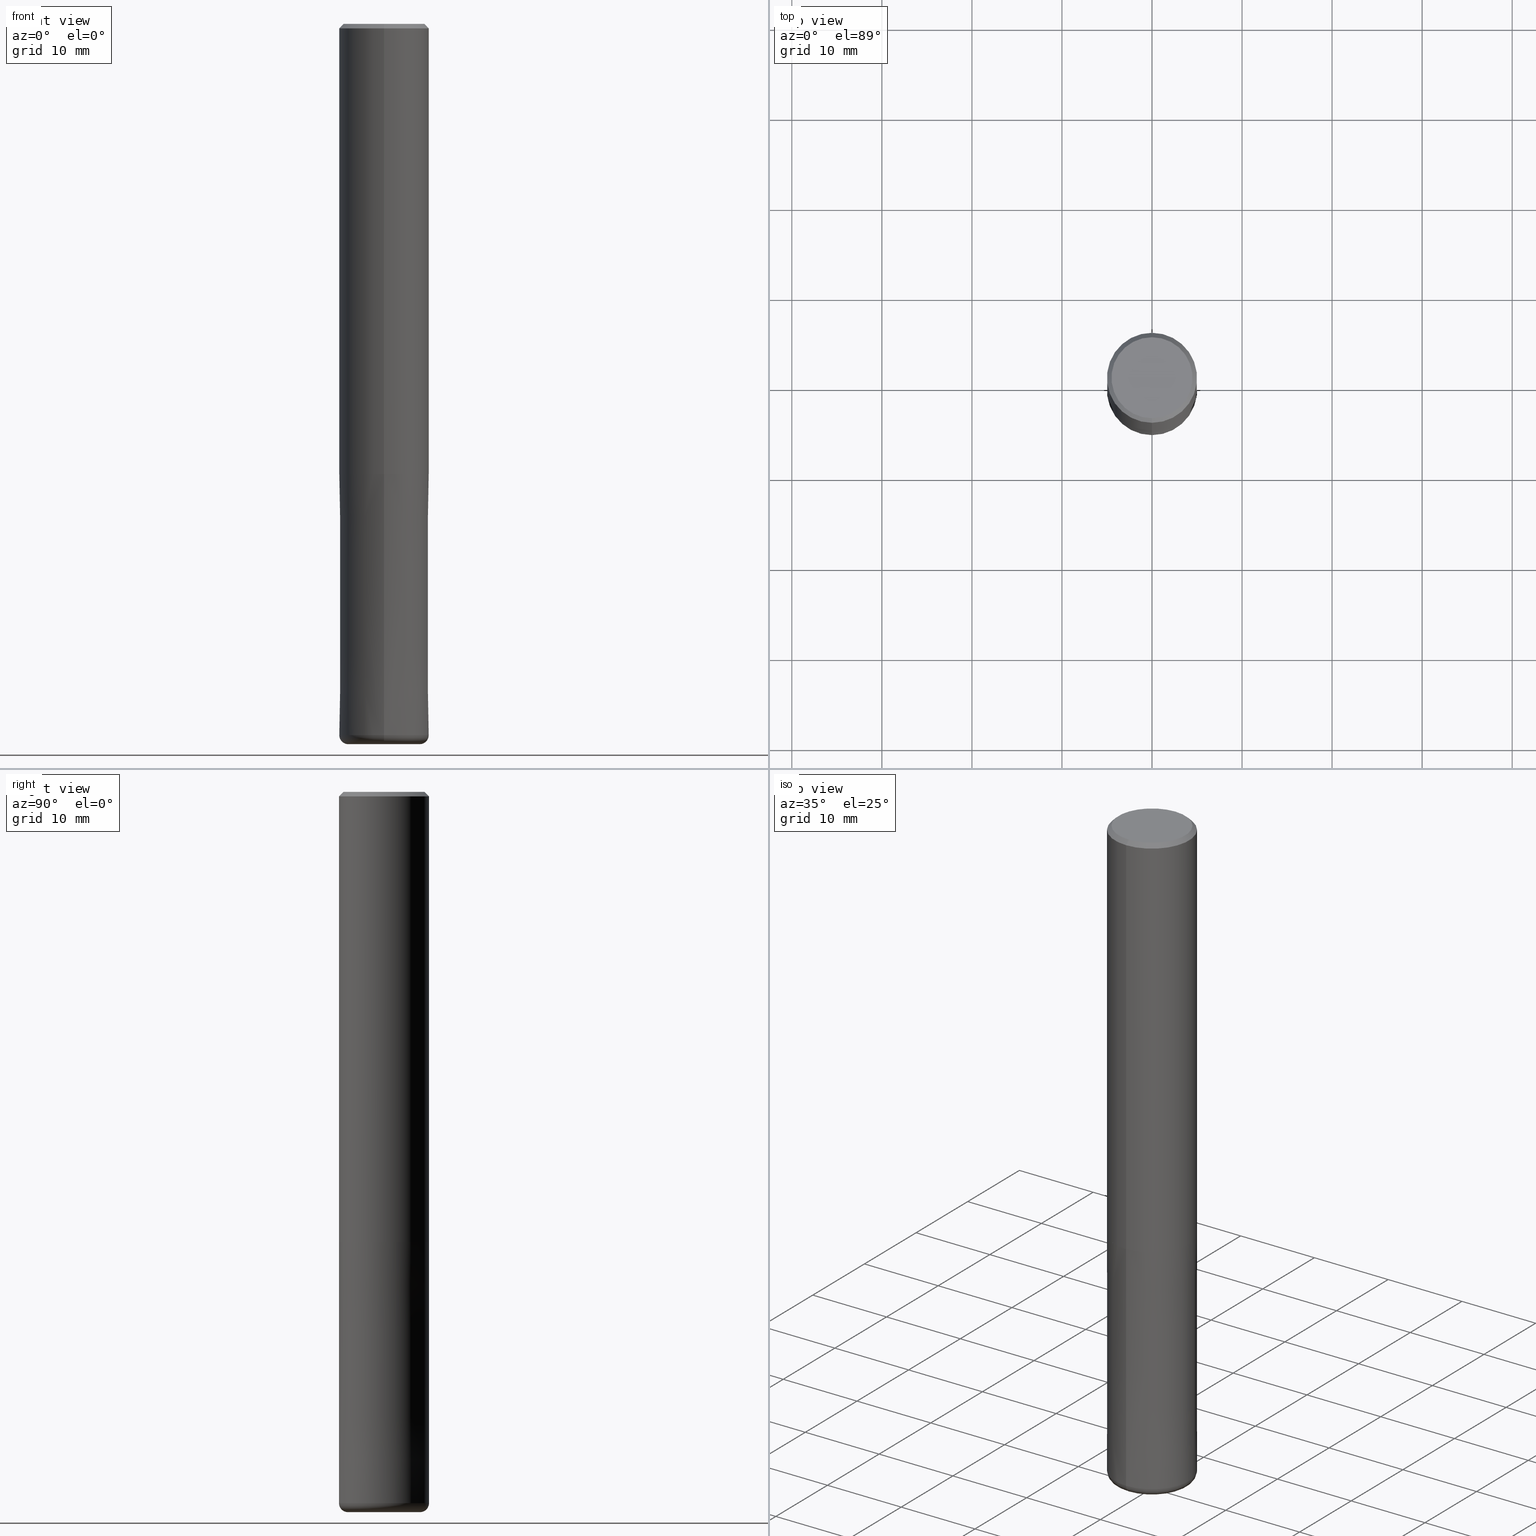
[diagram: canonical four-view strip — front | top / right | iso, engineering-drawing reading convention]
A machine part, canonical four-view strip (front | top / right | iso — engineering-drawing reading convention). The complete STEP part file that produces these views, byte-faithful:
ISO-10303-21;
HEADER;
FILE_DESCRIPTION(('no description'),'unknown implementation level');
FILE_NAME('CXRS5100-10-3000-Huellk.stp','  ',('CIMSOURCE GmbH'),('CADClick - KiM GmbH - www.kimweb.de'),'unknown preprocess','ACIS','unknown authorization');
FILE_SCHEMA(('automotive_design'));
ENDSEC;
DATA;
#1=MECHANICAL_DESIGN_GEOMETRIC_PRESENTATION_REPRESENTATION(' ',(#14,#15,#16,#17,#18,#19,#20,#21,#22,#23,#24,#25,#26,#27,#28,#29,#30,#31,#32,#33,#34,#35,#36,#37,#38,#39,#40,#41,#42,#43,#44,#45,#46,#47,#48,#49,#50,#51,#52,#53,#54,#55,#56,#57,#58,#59,#60,#61,#62,#63,#64,#65,#66,#67,#68,#69,#70,#71,#72,#73,#74,#75,#76,#77,#78,#79,#80,#81,#82,#83,#84),#10);
#2=PRODUCT_DEFINITION_CONTEXT('',#85,'design');
#3=APPLICATION_PROTOCOL_DEFINITION('INTERNATIONAL STANDARD','automotive_design',1994,#85);
#4=PRODUCT_CATEGORY_RELATIONSHIP('NONE','NONE',#86,#87);
#5=SHAPE_DEFINITION_REPRESENTATION(#88,#89);
#6=PRODUCT_DEFINITION_CONTEXT('',#90,'design');
#7=APPLICATION_PROTOCOL_DEFINITION('INTERNATIONAL STANDARD','automotive_design',1994,#90);
#8=PRODUCT_CATEGORY_RELATIONSHIP('NONE','NONE',#91,#92);
#9=SHAPE_DEFINITION_REPRESENTATION(#93,#94);
#10= (GEOMETRIC_REPRESENTATION_CONTEXT(3)GLOBAL_UNCERTAINTY_ASSIGNED_CONTEXT((#97))GLOBAL_UNIT_ASSIGNED_CONTEXT((#99,#100,#101))REPRESENTATION_CONTEXT('NONE','WORKSPACE'));
#14=STYLED_ITEM('',(#103),#104);
#15=STYLED_ITEM('',(#105),#106);
#16=STYLED_ITEM('',(#107),#108);
#17=STYLED_ITEM('',(#109),#110);
#18=STYLED_ITEM('',(#111),#112);
#19=STYLED_ITEM('',(#113),#114);
#20=STYLED_ITEM('',(#115),#116);
#21=STYLED_ITEM('',(#117),#118);
#22=STYLED_ITEM('',(#119),#120);
#23=STYLED_ITEM('',(#121),#122);
#24=STYLED_ITEM('',(#123),#124);
#25=STYLED_ITEM('',(#125),#126);
#26=STYLED_ITEM('',(#127),#128);
#27=STYLED_ITEM('',(#129),#130);
#28=STYLED_ITEM('',(#131),#132);
#29=STYLED_ITEM('',(#133),#134);
#30=STYLED_ITEM('',(#135),#136);
#31=STYLED_ITEM('',(#137),#138);
#32=STYLED_ITEM('',(#139),#140);
#33=STYLED_ITEM('',(#141),#142);
#34=STYLED_ITEM('',(#143),#144);
#35=STYLED_ITEM('',(#145),#146);
#36=STYLED_ITEM('',(#147),#148);
#37=STYLED_ITEM('',(#149),#150);
#38=STYLED_ITEM('',(#151),#152);
#39=STYLED_ITEM('',(#153),#154);
#40=STYLED_ITEM('',(#155),#156);
#41=STYLED_ITEM('',(#157),#158);
#42=STYLED_ITEM('',(#159),#160);
#43=STYLED_ITEM('',(#161),#162);
#44=STYLED_ITEM('',(#163),#164);
#45=STYLED_ITEM('',(#165),#166);
#46=STYLED_ITEM('',(#167),#168);
#47=STYLED_ITEM('',(#169),#170);
#48=STYLED_ITEM('',(#171),#172);
#49=STYLED_ITEM('',(#173),#174);
#50=STYLED_ITEM('',(#175),#176);
#51=STYLED_ITEM('',(#177),#178);
#52=STYLED_ITEM('',(#179),#180);
#53=STYLED_ITEM('',(#181),#182);
#54=STYLED_ITEM('',(#183),#184);
#55=STYLED_ITEM('',(#185),#186);
#56=STYLED_ITEM('',(#187),#188);
#57=STYLED_ITEM('',(#189),#190);
#58=STYLED_ITEM('',(#191),#192);
#59=STYLED_ITEM('',(#193),#194);
#60=STYLED_ITEM('',(#195),#196);
#61=STYLED_ITEM('',(#197),#198);
#62=STYLED_ITEM('',(#199),#200);
#63=STYLED_ITEM('',(#201),#202);
#64=STYLED_ITEM('',(#203),#204);
#65=STYLED_ITEM('',(#205),#206);
#66=STYLED_ITEM('',(#207),#208);
#67=STYLED_ITEM('',(#209),#210);
#68=STYLED_ITEM('',(#211),#212);
#69=STYLED_ITEM('',(#213),#214);
#70=STYLED_ITEM('',(#215),#216);
#71=STYLED_ITEM('',(#217),#218);
#72=STYLED_ITEM('',(#219),#220);
#73=STYLED_ITEM('',(#221),#222);
#74=STYLED_ITEM('',(#223),#224);
#75=STYLED_ITEM('',(#225),#226);
#76=STYLED_ITEM('',(#227),#228);
#77=STYLED_ITEM('',(#229),#230);
#78=STYLED_ITEM('',(#231),#232);
#79=STYLED_ITEM('',(#233),#234);
#80=STYLED_ITEM('',(#235),#236);
#81=STYLED_ITEM('',(#237),#238);
#82=STYLED_ITEM('',(#239),#240);
#83=STYLED_ITEM('',(#241),#242);
#84=STYLED_ITEM('',(#243),#244);
#85=APPLICATION_CONTEXT(' ');
#86=PRODUCT_CATEGORY('part','NONE');
#87=PRODUCT_RELATED_PRODUCT_CATEGORY('detail',' ',(#245));
#88=PRODUCT_DEFINITION_SHAPE('NONE','NONE',#246);
#89=ADVANCED_BREP_SHAPE_REPRESENTATION('1',(#104,#247),#10);
#90=APPLICATION_CONTEXT(' ');
#91=PRODUCT_CATEGORY('part','NONE');
#92=PRODUCT_RELATED_PRODUCT_CATEGORY('detail',' ',(#248));
#93=PRODUCT_DEFINITION_SHAPE('NONE','NONE',#249);
#94=ADVANCED_BREP_SHAPE_REPRESENTATION('2',(#222,#250),#10);
#97=UNCERTAINTY_MEASURE_WITH_UNIT(LENGTH_MEASURE(1.0E-006),#99,'','');
#99= (CONVERSION_BASED_UNIT('MILLIMETRE',#253)LENGTH_UNIT()NAMED_UNIT(#256));
#100= (NAMED_UNIT(#258)PLANE_ANGLE_UNIT()SI_UNIT($,.RADIAN.));
#101= (NAMED_UNIT(#258)SOLID_ANGLE_UNIT()SI_UNIT($,.STERADIAN.));
#103=PRESENTATION_STYLE_ASSIGNMENT((#264));
#104=MANIFOLD_SOLID_BREP('1',#265);
#105=PRESENTATION_STYLE_ASSIGNMENT((#266));
#106=VERTEX_POINT('',#267);
#107=PRESENTATION_STYLE_ASSIGNMENT((#268));
#108=EDGE_CURVE('',#120,#218,#269,.T.);
#109=PRESENTATION_STYLE_ASSIGNMENT((#270));
#110=EDGE_CURVE('',#232,#154,#271,.T.);
#111=PRESENTATION_STYLE_ASSIGNMENT((#272));
#112=EDGE_CURVE('',#192,#130,#273,.T.);
#113=PRESENTATION_STYLE_ASSIGNMENT((#274));
#114=EDGE_CURVE('',#224,#120,#275,.T.);
#115=PRESENTATION_STYLE_ASSIGNMENT((#276));
#116=ADVANCED_FACE('',(#277,#278),#279,.T.);
#117=PRESENTATION_STYLE_ASSIGNMENT((#280));
#118=EDGE_CURVE('',#132,#232,#281,.T.);
#119=PRESENTATION_STYLE_ASSIGNMENT((#282));
#120=VERTEX_POINT('',#283);
#121=PRESENTATION_STYLE_ASSIGNMENT((#284));
#122=ADVANCED_FACE('',(#285),#286,.T.);
#123=PRESENTATION_STYLE_ASSIGNMENT((#287));
#124=EDGE_CURVE('',#130,#192,#288,.T.);
#125=PRESENTATION_STYLE_ASSIGNMENT((#289));
#126=EDGE_CURVE('',#192,#140,#290,.T.);
#127=PRESENTATION_STYLE_ASSIGNMENT((#291));
#128=EDGE_CURVE('',#202,#224,#292,.T.);
#129=PRESENTATION_STYLE_ASSIGNMENT((#293));
#130=VERTEX_POINT('',#294);
#131=PRESENTATION_STYLE_ASSIGNMENT((#295));
#132=VERTEX_POINT('',#296);
#133=PRESENTATION_STYLE_ASSIGNMENT((#297));
#134=EDGE_CURVE('',#132,#150,#298,.T.);
#135=PRESENTATION_STYLE_ASSIGNMENT((#299));
#136=EDGE_CURVE('',#196,#182,#300,.T.);
#137=PRESENTATION_STYLE_ASSIGNMENT((#301));
#138=EDGE_CURVE('',#224,#202,#302,.T.);
#139=PRESENTATION_STYLE_ASSIGNMENT((#303));
#140=VERTEX_POINT('',#304);
#141=PRESENTATION_STYLE_ASSIGNMENT((#305));
#142=EDGE_CURVE('',#244,#140,#306,.T.);
#143=PRESENTATION_STYLE_ASSIGNMENT((#307));
#144=ADVANCED_FACE('',(#308,#309),#310,.T.);
#145=PRESENTATION_STYLE_ASSIGNMENT((#311));
#146=ADVANCED_FACE('',(#312),#313,.T.);
#147=PRESENTATION_STYLE_ASSIGNMENT((#314));
#148=ADVANCED_FACE('',(#315),#316,.T.);
#149=PRESENTATION_STYLE_ASSIGNMENT((#317));
#150=VERTEX_POINT('',#318);
#151=PRESENTATION_STYLE_ASSIGNMENT((#319));
#152=VERTEX_POINT('',#320);
#153=PRESENTATION_STYLE_ASSIGNMENT((#321));
#154=VERTEX_POINT('',#322);
#155=PRESENTATION_STYLE_ASSIGNMENT((#323));
#156=ADVANCED_FACE('',(#324),#325,.T.);
#157=PRESENTATION_STYLE_ASSIGNMENT((#326));
#158=VERTEX_POINT('',#327);
#159=PRESENTATION_STYLE_ASSIGNMENT((#328));
#160=EDGE_CURVE('',#168,#152,#329,.T.);
#161=PRESENTATION_STYLE_ASSIGNMENT((#330));
#162=ADVANCED_FACE('',(#331),#332,.F.);
#163=PRESENTATION_STYLE_ASSIGNMENT((#333));
#164=EDGE_CURVE('',#132,#106,#334,.T.);
#165=PRESENTATION_STYLE_ASSIGNMENT((#335));
#166=EDGE_CURVE('',#106,#184,#336,.T.);
#167=PRESENTATION_STYLE_ASSIGNMENT((#337));
#168=VERTEX_POINT('',#338);
#169=PRESENTATION_STYLE_ASSIGNMENT((#339));
#170=EDGE_CURVE('',#140,#244,#340,.T.);
#171=PRESENTATION_STYLE_ASSIGNMENT((#341));
#172=EDGE_CURVE('',#152,#168,#342,.T.);
#173=PRESENTATION_STYLE_ASSIGNMENT((#343));
#174=VERTEX_POINT('',#344);
#175=PRESENTATION_STYLE_ASSIGNMENT((#345));
#176=ADVANCED_FACE('',(#346),#347,.T.);
#177=PRESENTATION_STYLE_ASSIGNMENT((#348));
#178=EDGE_CURVE('',#196,#158,#349,.T.);
#179=PRESENTATION_STYLE_ASSIGNMENT((#350));
#180=ADVANCED_FACE('',(#351),#352,.T.);
#181=PRESENTATION_STYLE_ASSIGNMENT((#353));
#182=VERTEX_POINT('',#354);
#183=PRESENTATION_STYLE_ASSIGNMENT((#355));
#184=VERTEX_POINT('',#356);
#185=PRESENTATION_STYLE_ASSIGNMENT((#357));
#186=ADVANCED_FACE('',(#358),#359,.T.);
#187=PRESENTATION_STYLE_ASSIGNMENT((#360));
#188=EDGE_CURVE('',#184,#150,#361,.T.);
#189=PRESENTATION_STYLE_ASSIGNMENT((#362));
#190=ADVANCED_FACE('',(#363),#364,.T.);
#191=PRESENTATION_STYLE_ASSIGNMENT((#365));
#192=VERTEX_POINT('',#366);
#193=PRESENTATION_STYLE_ASSIGNMENT((#367));
#194=ADVANCED_FACE('',(#368),#369,.T.);
#195=PRESENTATION_STYLE_ASSIGNMENT((#370));
#196=VERTEX_POINT('',#371);
#197=PRESENTATION_STYLE_ASSIGNMENT((#372));
#198=EDGE_CURVE('',#154,#150,#373,.T.);
#199=PRESENTATION_STYLE_ASSIGNMENT((#374));
#200=ADVANCED_FACE('',(#375),#376,.T.);
#201=PRESENTATION_STYLE_ASSIGNMENT((#377));
#202=VERTEX_POINT('',#378);
#203=PRESENTATION_STYLE_ASSIGNMENT((#379));
#204=EDGE_CURVE('',#158,#174,#380,.T.);
#205=PRESENTATION_STYLE_ASSIGNMENT((#381));
#206=ADVANCED_FACE('',(#382,#383),#384,.T.);
#207=PRESENTATION_STYLE_ASSIGNMENT((#385));
#208=EDGE_CURVE('',#174,#158,#386,.T.);
#209=PRESENTATION_STYLE_ASSIGNMENT((#387));
#210=EDGE_CURVE('',#174,#182,#388,.T.);
#211=PRESENTATION_STYLE_ASSIGNMENT((#389));
#212=EDGE_CURVE('',#154,#232,#390,.T.);
#213=PRESENTATION_STYLE_ASSIGNMENT((#391));
#214=EDGE_CURVE('',#150,#132,#392,.T.);
#215=PRESENTATION_STYLE_ASSIGNMENT((#393));
#216=ADVANCED_FACE('',(#394),#395,.T.);
#217=PRESENTATION_STYLE_ASSIGNMENT((#396));
#218=VERTEX_POINT('',#397);
#219=PRESENTATION_STYLE_ASSIGNMENT((#398));
#220=EDGE_CURVE('',#202,#168,#399,.T.);
#221=PRESENTATION_STYLE_ASSIGNMENT((#400));
#222=MANIFOLD_SOLID_BREP('2',#401);
#223=PRESENTATION_STYLE_ASSIGNMENT((#402));
#224=VERTEX_POINT('',#403);
#225=PRESENTATION_STYLE_ASSIGNMENT((#404));
#226=EDGE_CURVE('',#218,#202,#405,.T.);
#227=PRESENTATION_STYLE_ASSIGNMENT((#406));
#228=EDGE_CURVE('',#244,#130,#407,.T.);
#229=PRESENTATION_STYLE_ASSIGNMENT((#408));
#230=EDGE_CURVE('',#182,#196,#409,.T.);
#231=PRESENTATION_STYLE_ASSIGNMENT((#410));
#232=VERTEX_POINT('',#411);
#233=PRESENTATION_STYLE_ASSIGNMENT((#412));
#234=EDGE_CURVE('',#184,#106,#413,.T.);
#235=PRESENTATION_STYLE_ASSIGNMENT((#414));
#236=ADVANCED_FACE('',(#415),#416,.F.);
#237=PRESENTATION_STYLE_ASSIGNMENT((#417));
#238=EDGE_CURVE('',#218,#120,#418,.T.);
#239=PRESENTATION_STYLE_ASSIGNMENT((#419));
#240=EDGE_CURVE('',#152,#224,#420,.T.);
#241=PRESENTATION_STYLE_ASSIGNMENT((#421));
#242=ADVANCED_FACE('',(#422),#423,.T.);
#243=PRESENTATION_STYLE_ASSIGNMENT((#424));
#244=VERTEX_POINT('',#425);
#245=PRODUCT('1','1','PART-1-DESC',(#426));
#246=PRODUCT_DEFINITION('NONE','NONE',#427,#2);
#247=AXIS2_PLACEMENT_3D('',#428,#429,#430);
#248=PRODUCT('2','2','PART-2-DESC',(#431));
#249=PRODUCT_DEFINITION('NONE','NONE',#432,#6);
#250=AXIS2_PLACEMENT_3D('',#433,#434,#435);
#253=LENGTH_MEASURE_WITH_UNIT(LENGTH_MEASURE(1.0),#436);
#256=DIMENSIONAL_EXPONENTS(1.0,0.0,0.0,0.0,0.0,0.0,0.0);
#258=DIMENSIONAL_EXPONENTS(0.0,0.0,0.0,0.0,0.0,0.0,0.0);
#264=SURFACE_STYLE_USAGE(.BOTH.,#437);
#265=CLOSED_SHELL('',(#156,#146,#186,#206,#200,#194,#176,#122,#216));
#266=POINT_STYLE(' ',#438,POSITIVE_LENGTH_MEASURE(1.0E-006),#439);
#267=CARTESIAN_POINT('',(6.1229093084765E-016,-4.9999,-50.0));
#268=CURVE_STYLE('',#440,POSITIVE_LENGTH_MEASURE(1.0E-006),#441);
#269=CIRCLE('',#442,5.0);
#270=CURVE_STYLE('',#443,POSITIVE_LENGTH_MEASURE(1.0E-006),#444);
#271=CIRCLE('',#445,4.0);
#272=CURVE_STYLE('',#446,POSITIVE_LENGTH_MEASURE(1.0E-006),#447);
#273=CIRCLE('',#448,2.25);
#274=CURVE_STYLE('',#449,POSITIVE_LENGTH_MEASURE(1.0E-006),#450);
#275=LINE('',#451,#452);
#276=SURFACE_STYLE_USAGE(.BOTH.,#453);
#277=FACE_BOUND('',#454,.T.);
#278=FACE_OUTER_BOUND('',#455,.T.);
#279=PLANE('',#456);
#280=CURVE_STYLE('',#457,POSITIVE_LENGTH_MEASURE(1.0E-006),#458);
#281=CIRCLE('',#459,0.999999999999989);
#282=POINT_STYLE(' ',#460,POSITIVE_LENGTH_MEASURE(1.0E-006),#461);
#283=CARTESIAN_POINT('',(0.0,5.0,-50.0));
#284=SURFACE_STYLE_USAGE(.BOTH.,#462);
#285=FACE_OUTER_BOUND('',#463,.T.);
#286=CYLINDRICAL_SURFACE('',#464,2.25);
#287=CURVE_STYLE('',#465,POSITIVE_LENGTH_MEASURE(1.0E-006),#466);
#288=CIRCLE('',#467,2.25);
#289=CURVE_STYLE('',#468,POSITIVE_LENGTH_MEASURE(1.0E-006),#469);
#290=LINE('',#470,#471);
#291=CURVE_STYLE('',#472,POSITIVE_LENGTH_MEASURE(1.0E-006),#473);
#292=CIRCLE('',#474,5.0);
#293=POINT_STYLE(' ',#475,POSITIVE_LENGTH_MEASURE(1.0E-006),#476);
#294=CARTESIAN_POINT('',(2.75536429610035E-016,-2.25,-50.0));
#295=POINT_STYLE(' ',#477,POSITIVE_LENGTH_MEASURE(1.0E-006),#478);
#296=CARTESIAN_POINT('',(6.12303176911188E-016,-5.0,-79.0));
#297=CURVE_STYLE('',#479,POSITIVE_LENGTH_MEASURE(1.0E-006),#480);
#298=CIRCLE('',#481,5.0);
#299=CURVE_STYLE('',#482,POSITIVE_LENGTH_MEASURE(1.0E-006),#483);
#300=CIRCLE('',#484,2.25);
#301=CURVE_STYLE('',#485,POSITIVE_LENGTH_MEASURE(1.0E-006),#486);
#302=CIRCLE('',#487,5.0);
#303=POINT_STYLE(' ',#488,POSITIVE_LENGTH_MEASURE(1.0E-006),#489);
#304=CARTESIAN_POINT('',(0.0,2.25,-79.8));
#305=CURVE_STYLE('',#490,POSITIVE_LENGTH_MEASURE(1.0E-006),#491);
#306=CIRCLE('',#492,2.25);
#307=SURFACE_STYLE_USAGE(.BOTH.,#493);
#308=FACE_OUTER_BOUND('',#494,.T.);
#309=FACE_BOUND('',#495,.T.);
#310=PLANE('',#496);
#311=SURFACE_STYLE_USAGE(.BOTH.,#497);
#312=FACE_OUTER_BOUND('',#498,.T.);
#313=CYLINDRICAL_SURFACE('',#499,5.0);
#314=SURFACE_STYLE_USAGE(.BOTH.,#500);
#315=FACE_OUTER_BOUND('',#501,.T.);
#316=TOROIDAL_SURFACE('',#502,4.00000000000001,0.999999999999989);
#317=POINT_STYLE(' ',#503,POSITIVE_LENGTH_MEASURE(1.0E-006),#504);
#318=CARTESIAN_POINT('',(0.0,5.0,-79.0));
#319=POINT_STYLE(' ',#505,POSITIVE_LENGTH_MEASURE(1.0E-006),#506);
#320=CARTESIAN_POINT('',(0.0,4.5,0.0));
#321=POINT_STYLE(' ',#507,POSITIVE_LENGTH_MEASURE(1.0E-006),#508);
#322=CARTESIAN_POINT('',(0.0,4.0,-80.0));
#323=SURFACE_STYLE_USAGE(.BOTH.,#509);
#324=FACE_OUTER_BOUND('',#510,.T.);
#325=CYLINDRICAL_SURFACE('',#511,2.25);
#326=POINT_STYLE(' ',#512,POSITIVE_LENGTH_MEASURE(1.0E-006),#513);
#327=CARTESIAN_POINT('',(2.75536429610035E-016,-2.25,-50.0));
#328=CURVE_STYLE('',#514,POSITIVE_LENGTH_MEASURE(1.0E-006),#515);
#329=CIRCLE('',#516,4.5);
#330=SURFACE_STYLE_USAGE(.BOTH.,#517);
#331=FACE_OUTER_BOUND('',#518,.T.);
#332=CYLINDRICAL_SURFACE('',#519,2.25);
#333=CURVE_STYLE('',#520,POSITIVE_LENGTH_MEASURE(1.0E-006),#521);
#334=LINE('',#522,#523);
#335=CURVE_STYLE('',#524,POSITIVE_LENGTH_MEASURE(1.0E-006),#525);
#336=CIRCLE('',#526,4.9999);
#337=POINT_STYLE(' ',#527,POSITIVE_LENGTH_MEASURE(1.0E-006),#528);
#338=CARTESIAN_POINT('',(5.5107285922007E-016,-4.5,0.0));
#339=CURVE_STYLE('',#529,POSITIVE_LENGTH_MEASURE(1.0E-006),#530);
#340=CIRCLE('',#531,2.25);
#341=CURVE_STYLE('',#532,POSITIVE_LENGTH_MEASURE(1.0E-006),#533);
#342=CIRCLE('',#534,4.5);
#343=POINT_STYLE(' ',#535,POSITIVE_LENGTH_MEASURE(1.0E-006),#536);
#344=CARTESIAN_POINT('',(0.0,2.25,-50.0));
#345=SURFACE_STYLE_USAGE(.BOTH.,#537);
#346=FACE_OUTER_BOUND('',#538,.T.);
#347=CYLINDRICAL_SURFACE('',#539,5.0);
#348=CURVE_STYLE('',#540,POSITIVE_LENGTH_MEASURE(1.0E-006),#541);
#349=LINE('',#542,#543);
#350=SURFACE_STYLE_USAGE(.BOTH.,#544);
#351=FACE_OUTER_BOUND('',#545,.T.);
#352=TOROIDAL_SURFACE('',#546,4.00000000000001,0.999999999999989);
#353=POINT_STYLE(' ',#547,POSITIVE_LENGTH_MEASURE(1.0E-006),#548);
#354=CARTESIAN_POINT('',(0.0,2.25,-80.0));
#355=POINT_STYLE(' ',#549,POSITIVE_LENGTH_MEASURE(1.0E-006),#550);
#356=CARTESIAN_POINT('',(0.0,4.9999,-50.0));
#357=SURFACE_STYLE_USAGE(.BOTH.,#551);
#358=FACE_OUTER_BOUND('',#552,.T.);
#359=CONICAL_SURFACE('',#553,4.75,0.785398163397448);
#360=CURVE_STYLE('',#554,POSITIVE_LENGTH_MEASURE(1.0E-006),#555);
#361=LINE('',#556,#557);
#362=SURFACE_STYLE_USAGE(.BOTH.,#558);
#363=FACE_OUTER_BOUND('',#559,.T.);
#364=CONICAL_SURFACE('',#560,4.99995,3.44827586204726E-006);
#365=POINT_STYLE(' ',#561,POSITIVE_LENGTH_MEASURE(1.0E-006),#562);
#366=CARTESIAN_POINT('',(0.0,2.25,-50.0));
#367=SURFACE_STYLE_USAGE(.BOTH.,#563);
#368=FACE_OUTER_BOUND('',#564,.T.);
#369=CONICAL_SURFACE('',#565,4.75,0.785398163397448);
#370=POINT_STYLE(' ',#566,POSITIVE_LENGTH_MEASURE(1.0E-006),#567);
#371=CARTESIAN_POINT('',(2.75536429610035E-016,-2.25,-80.0));
#372=CURVE_STYLE('',#568,POSITIVE_LENGTH_MEASURE(1.0E-006),#569);
#373=CIRCLE('',#570,0.999999999999989);
#374=SURFACE_STYLE_USAGE(.BOTH.,#571);
#375=FACE_OUTER_BOUND('',#572,.T.);
#376=PLANE('',#573);
#377=POINT_STYLE(' ',#574,POSITIVE_LENGTH_MEASURE(1.0E-006),#575);
#378=CARTESIAN_POINT('',(6.12303176911189E-016,-5.0,-0.5));
#379=CURVE_STYLE('',#576,POSITIVE_LENGTH_MEASURE(1.0E-006),#577);
#380=CIRCLE('',#578,2.25);
#381=SURFACE_STYLE_USAGE(.BOTH.,#579);
#382=FACE_OUTER_BOUND('',#580,.T.);
#383=FACE_BOUND('',#581,.T.);
#384=PLANE('',#582);
#385=CURVE_STYLE('',#583,POSITIVE_LENGTH_MEASURE(1.0E-006),#584);
#386=CIRCLE('',#585,2.25);
#387=CURVE_STYLE('',#586,POSITIVE_LENGTH_MEASURE(1.0E-006),#587);
#388=LINE('',#588,#589);
#389=CURVE_STYLE('',#590,POSITIVE_LENGTH_MEASURE(1.0E-006),#591);
#390=CIRCLE('',#592,4.0);
#391=CURVE_STYLE('',#593,POSITIVE_LENGTH_MEASURE(1.0E-006),#594);
#392=CIRCLE('',#595,5.0);
#393=SURFACE_STYLE_USAGE(.BOTH.,#596);
#394=FACE_OUTER_BOUND('',#597,.T.);
#395=PLANE('',#598);
#396=POINT_STYLE(' ',#599,POSITIVE_LENGTH_MEASURE(1.0E-006),#600);
#397=CARTESIAN_POINT('',(6.12303176911189E-016,-5.0,-50.0));
#398=CURVE_STYLE('',#601,POSITIVE_LENGTH_MEASURE(1.0E-006),#602);
#399=LINE('',#603,#604);
#400=SURFACE_STYLE_USAGE(.BOTH.,#605);
#401=CLOSED_SHELL('',(#236,#180,#190,#144,#242,#148,#116,#162));
#402=POINT_STYLE(' ',#606,POSITIVE_LENGTH_MEASURE(1.0E-006),#607);
#403=CARTESIAN_POINT('',(0.0,5.0,-0.5));
#404=CURVE_STYLE('',#608,POSITIVE_LENGTH_MEASURE(1.0E-006),#609);
#405=LINE('',#610,#611);
#406=CURVE_STYLE('',#612,POSITIVE_LENGTH_MEASURE(1.0E-006),#613);
#407=LINE('',#614,#615);
#408=CURVE_STYLE('',#616,POSITIVE_LENGTH_MEASURE(1.0E-006),#617);
#409=CIRCLE('',#618,2.25);
#410=POINT_STYLE(' ',#619,POSITIVE_LENGTH_MEASURE(1.0E-006),#620);
#411=CARTESIAN_POINT('',(4.89842541528951E-016,-4.0,-80.0));
#412=CURVE_STYLE('',#621,POSITIVE_LENGTH_MEASURE(1.0E-006),#622);
#413=CIRCLE('',#623,4.9999);
#414=SURFACE_STYLE_USAGE(.BOTH.,#624);
#415=FACE_OUTER_BOUND('',#625,.T.);
#416=CYLINDRICAL_SURFACE('',#626,2.25);
#417=CURVE_STYLE('',#627,POSITIVE_LENGTH_MEASURE(1.0E-006),#628);
#418=CIRCLE('',#629,5.0);
#419=CURVE_STYLE('',#630,POSITIVE_LENGTH_MEASURE(1.0E-006),#631);
#420=LINE('',#632,#633);
#421=SURFACE_STYLE_USAGE(.BOTH.,#634);
#422=FACE_OUTER_BOUND('',#635,.T.);
#423=CONICAL_SURFACE('',#636,4.99995,3.44827586204726E-006);
#424=POINT_STYLE(' ',#637,POSITIVE_LENGTH_MEASURE(1.0E-006),#638);
#425=CARTESIAN_POINT('',(2.75536429610035E-016,-2.25,-79.8));
#426=PRODUCT_CONTEXT('',#85,'mechanical');
#427=PRODUCT_DEFINITION_FORMATION_WITH_SPECIFIED_SOURCE(' ','NONE',#245,.NOT_KNOWN.);
#428=CARTESIAN_POINT('',(0.0,0.0,0.0));
#429=DIRECTION('',(0.0,0.0,1.0));
#430=DIRECTION('',(1.0,0.0,0.0));
#431=PRODUCT_CONTEXT('',#90,'mechanical');
#432=PRODUCT_DEFINITION_FORMATION_WITH_SPECIFIED_SOURCE(' ','NONE',#248,.NOT_KNOWN.);
#433=CARTESIAN_POINT('',(0.0,0.0,0.0));
#434=DIRECTION('',(0.0,0.0,1.0));
#435=DIRECTION('',(1.0,0.0,0.0));
#436= (NAMED_UNIT(#256)LENGTH_UNIT()SI_UNIT(.MILLI.,.METRE.));
#437=SURFACE_SIDE_STYLE('',(#640));
#438=PRE_DEFINED_MARKER('');
#439=COLOUR_RGB('',0.800000011920929,0.800000011920929,0.800000011920929);
#440=DRAUGHTING_PRE_DEFINED_CURVE_FONT('continuous');
#441=COLOUR_RGB('',0.498039215803146,0.498039215803146,0.498039215803146);
#442=AXIS2_PLACEMENT_3D('',#641,#642,#643);
#443=DRAUGHTING_PRE_DEFINED_CURVE_FONT('continuous');
#444=COLOUR_RGB('',0.800000011920929,0.800000011920929,0.800000011920929);
#445=AXIS2_PLACEMENT_3D('',#644,#645,#646);
#446=DRAUGHTING_PRE_DEFINED_CURVE_FONT('continuous');
#447=COLOUR_RGB('',0.498039215803146,0.498039215803146,0.498039215803146);
#448=AXIS2_PLACEMENT_3D('',#647,#648,#649);
#449=DRAUGHTING_PRE_DEFINED_CURVE_FONT('continuous');
#450=COLOUR_RGB('',0.498039215803146,0.498039215803146,0.498039215803146);
#451=CARTESIAN_POINT('',(-6.12303176911189E-016,5.0,-25.25));
#452=VECTOR('',#650,1.0);
#453=SURFACE_SIDE_STYLE('',(#651));
#454=EDGE_LOOP('',(#652,#653));
#455=EDGE_LOOP('',(#654,#655));
#456=AXIS2_PLACEMENT_3D('',#656,#657,#658);
#457=DRAUGHTING_PRE_DEFINED_CURVE_FONT('continuous');
#458=COLOUR_RGB('',0.800000011920929,0.800000011920929,0.800000011920929);
#459=AXIS2_PLACEMENT_3D('',#659,#660,#661);
#460=PRE_DEFINED_MARKER('');
#461=COLOUR_RGB('',0.498039215803146,0.498039215803146,0.498039215803146);
#462=SURFACE_SIDE_STYLE('',(#662));
#463=EDGE_LOOP('',(#663,#664,#665,#666));
#464=AXIS2_PLACEMENT_3D('',#667,#668,#669);
#465=DRAUGHTING_PRE_DEFINED_CURVE_FONT('continuous');
#466=COLOUR_RGB('',0.498039215803146,0.498039215803146,0.498039215803146);
#467=AXIS2_PLACEMENT_3D('',#670,#671,#672);
#468=DRAUGHTING_PRE_DEFINED_CURVE_FONT('continuous');
#469=COLOUR_RGB('',0.498039215803146,0.498039215803146,0.498039215803146);
#470=CARTESIAN_POINT('',(-2.75536429610035E-016,2.25,-64.9));
#471=VECTOR('',#673,1.0);
#472=DRAUGHTING_PRE_DEFINED_CURVE_FONT('continuous');
#473=COLOUR_RGB('',0.498039215803146,0.498039215803146,0.498039215803146);
#474=AXIS2_PLACEMENT_3D('',#674,#675,#676);
#475=PRE_DEFINED_MARKER('');
#476=COLOUR_RGB('',0.498039215803146,0.498039215803146,0.498039215803146);
#477=PRE_DEFINED_MARKER('');
#478=COLOUR_RGB('',0.800000011920929,0.800000011920929,0.800000011920929);
#479=DRAUGHTING_PRE_DEFINED_CURVE_FONT('continuous');
#480=COLOUR_RGB('',0.800000011920929,0.800000011920929,0.800000011920929);
#481=AXIS2_PLACEMENT_3D('',#677,#678,#679);
#482=DRAUGHTING_PRE_DEFINED_CURVE_FONT('continuous');
#483=COLOUR_RGB('',0.800000011920929,0.800000011920929,0.800000011920929);
#484=AXIS2_PLACEMENT_3D('',#680,#681,#682);
#485=DRAUGHTING_PRE_DEFINED_CURVE_FONT('continuous');
#486=COLOUR_RGB('',0.498039215803146,0.498039215803146,0.498039215803146);
#487=AXIS2_PLACEMENT_3D('',#683,#684,#685);
#488=PRE_DEFINED_MARKER('');
#489=COLOUR_RGB('',0.498039215803146,0.498039215803146,0.498039215803146);
#490=DRAUGHTING_PRE_DEFINED_CURVE_FONT('continuous');
#491=COLOUR_RGB('',0.498039215803146,0.498039215803146,0.498039215803146);
#492=AXIS2_PLACEMENT_3D('',#686,#687,#688);
#493=SURFACE_SIDE_STYLE('',(#689));
#494=EDGE_LOOP('',(#690,#691));
#495=EDGE_LOOP('',(#692,#693));
#496=AXIS2_PLACEMENT_3D('',#694,#695,#696);
#497=SURFACE_SIDE_STYLE('',(#697));
#498=EDGE_LOOP('',(#698,#699,#700,#701));
#499=AXIS2_PLACEMENT_3D('',#702,#703,#704);
#500=SURFACE_SIDE_STYLE('',(#705));
#501=EDGE_LOOP('',(#706,#707,#708,#709));
#502=AXIS2_PLACEMENT_3D('',#710,#711,#712);
#503=PRE_DEFINED_MARKER('');
#504=COLOUR_RGB('',0.800000011920929,0.800000011920929,0.800000011920929);
#505=PRE_DEFINED_MARKER('');
#506=COLOUR_RGB('',0.498039215803146,0.498039215803146,0.498039215803146);
#507=PRE_DEFINED_MARKER('');
#508=COLOUR_RGB('',0.800000011920929,0.800000011920929,0.800000011920929);
#509=SURFACE_SIDE_STYLE('',(#713));
#510=EDGE_LOOP('',(#714,#715,#716,#717));
#511=AXIS2_PLACEMENT_3D('',#718,#719,#720);
#512=PRE_DEFINED_MARKER('');
#513=COLOUR_RGB('',0.800000011920929,0.800000011920929,0.800000011920929);
#514=DRAUGHTING_PRE_DEFINED_CURVE_FONT('continuous');
#515=COLOUR_RGB('',0.498039215803146,0.498039215803146,0.498039215803146);
#516=AXIS2_PLACEMENT_3D('',#721,#722,#723);
#517=SURFACE_SIDE_STYLE('',(#724));
#518=EDGE_LOOP('',(#725,#726,#727,#728));
#519=AXIS2_PLACEMENT_3D('',#729,#730,#731);
#520=DRAUGHTING_PRE_DEFINED_CURVE_FONT('continuous');
#521=COLOUR_RGB('',0.800000011920929,0.800000011920929,0.800000011920929);
#522=CARTESIAN_POINT('',(6.12297053879419E-016,-4.99995,-64.5));
#523=VECTOR('',#732,1.0);
#524=DRAUGHTING_PRE_DEFINED_CURVE_FONT('continuous');
#525=COLOUR_RGB('',0.800000011920929,0.800000011920929,0.800000011920929);
#526=AXIS2_PLACEMENT_3D('',#733,#734,#735);
#527=PRE_DEFINED_MARKER('');
#528=COLOUR_RGB('',0.498039215803146,0.498039215803146,0.498039215803146);
#529=DRAUGHTING_PRE_DEFINED_CURVE_FONT('continuous');
#530=COLOUR_RGB('',0.498039215803146,0.498039215803146,0.498039215803146);
#531=AXIS2_PLACEMENT_3D('',#736,#737,#738);
#532=DRAUGHTING_PRE_DEFINED_CURVE_FONT('continuous');
#533=COLOUR_RGB('',0.498039215803146,0.498039215803146,0.498039215803146);
#534=AXIS2_PLACEMENT_3D('',#739,#740,#741);
#535=PRE_DEFINED_MARKER('');
#536=COLOUR_RGB('',0.800000011920929,0.800000011920929,0.800000011920929);
#537=SURFACE_SIDE_STYLE('',(#742));
#538=EDGE_LOOP('',(#743,#744,#745,#746));
#539=AXIS2_PLACEMENT_3D('',#747,#748,#749);
#540=DRAUGHTING_PRE_DEFINED_CURVE_FONT('continuous');
#541=COLOUR_RGB('',0.800000011920929,0.800000011920929,0.800000011920929);
#542=CARTESIAN_POINT('',(2.75536429610035E-016,-2.25,-65.0));
#543=VECTOR('',#750,1.0);
#544=SURFACE_SIDE_STYLE('',(#751));
#545=EDGE_LOOP('',(#752,#753,#754,#755));
#546=AXIS2_PLACEMENT_3D('',#756,#757,#758);
#547=PRE_DEFINED_MARKER('');
#548=COLOUR_RGB('',0.800000011920929,0.800000011920929,0.800000011920929);
#549=PRE_DEFINED_MARKER('');
#550=COLOUR_RGB('',0.800000011920929,0.800000011920929,0.800000011920929);
#551=SURFACE_SIDE_STYLE('',(#759));
#552=EDGE_LOOP('',(#760,#761,#762,#763));
#553=AXIS2_PLACEMENT_3D('',#764,#765,#766);
#554=DRAUGHTING_PRE_DEFINED_CURVE_FONT('continuous');
#555=COLOUR_RGB('',0.800000011920929,0.800000011920929,0.800000011920929);
#556=CARTESIAN_POINT('',(-6.12297053879419E-016,4.99995,-64.5));
#557=VECTOR('',#767,1.0);
#558=SURFACE_SIDE_STYLE('',(#768));
#559=EDGE_LOOP('',(#769,#770,#771,#772));
#560=AXIS2_PLACEMENT_3D('',#773,#774,#775);
#561=PRE_DEFINED_MARKER('');
#562=COLOUR_RGB('',0.498039215803146,0.498039215803146,0.498039215803146);
#563=SURFACE_SIDE_STYLE('',(#776));
#564=EDGE_LOOP('',(#777,#778,#779,#780));
#565=AXIS2_PLACEMENT_3D('',#781,#782,#783);
#566=PRE_DEFINED_MARKER('');
#567=COLOUR_RGB('',0.800000011920929,0.800000011920929,0.800000011920929);
#568=DRAUGHTING_PRE_DEFINED_CURVE_FONT('continuous');
#569=COLOUR_RGB('',0.800000011920929,0.800000011920929,0.800000011920929);
#570=AXIS2_PLACEMENT_3D('',#784,#785,#786);
#571=SURFACE_SIDE_STYLE('',(#787));
#572=EDGE_LOOP('',(#788,#789));
#573=AXIS2_PLACEMENT_3D('',#790,#791,#792);
#574=PRE_DEFINED_MARKER('');
#575=COLOUR_RGB('',0.498039215803146,0.498039215803146,0.498039215803146);
#576=DRAUGHTING_PRE_DEFINED_CURVE_FONT('continuous');
#577=COLOUR_RGB('',0.800000011920929,0.800000011920929,0.800000011920929);
#578=AXIS2_PLACEMENT_3D('',#793,#794,#795);
#579=SURFACE_SIDE_STYLE('',(#796));
#580=EDGE_LOOP('',(#797,#798));
#581=EDGE_LOOP('',(#799,#800));
#582=AXIS2_PLACEMENT_3D('',#801,#802,#803);
#583=DRAUGHTING_PRE_DEFINED_CURVE_FONT('continuous');
#584=COLOUR_RGB('',0.800000011920929,0.800000011920929,0.800000011920929);
#585=AXIS2_PLACEMENT_3D('',#804,#805,#806);
#586=DRAUGHTING_PRE_DEFINED_CURVE_FONT('continuous');
#587=COLOUR_RGB('',0.800000011920929,0.800000011920929,0.800000011920929);
#588=CARTESIAN_POINT('',(-2.75536429610035E-016,2.25,-65.0));
#589=VECTOR('',#807,1.0);
#590=DRAUGHTING_PRE_DEFINED_CURVE_FONT('continuous');
#591=COLOUR_RGB('',0.800000011920929,0.800000011920929,0.800000011920929);
#592=AXIS2_PLACEMENT_3D('',#808,#809,#810);
#593=DRAUGHTING_PRE_DEFINED_CURVE_FONT('continuous');
#594=COLOUR_RGB('',0.800000011920929,0.800000011920929,0.800000011920929);
#595=AXIS2_PLACEMENT_3D('',#811,#812,#813);
#596=SURFACE_SIDE_STYLE('',(#814));
#597=EDGE_LOOP('',(#815,#816));
#598=AXIS2_PLACEMENT_3D('',#817,#818,#819);
#599=PRE_DEFINED_MARKER('');
#600=COLOUR_RGB('',0.498039215803146,0.498039215803146,0.498039215803146);
#601=DRAUGHTING_PRE_DEFINED_CURVE_FONT('continuous');
#602=COLOUR_RGB('',0.498039215803146,0.498039215803146,0.498039215803146);
#603=CARTESIAN_POINT('',(5.81688018065629E-016,-4.75,-0.25));
#604=VECTOR('',#820,1.0);
#605=SURFACE_SIDE_STYLE('',(#821));
#606=PRE_DEFINED_MARKER('');
#607=COLOUR_RGB('',0.498039215803146,0.498039215803146,0.498039215803146);
#608=DRAUGHTING_PRE_DEFINED_CURVE_FONT('continuous');
#609=COLOUR_RGB('',0.498039215803146,0.498039215803146,0.498039215803146);
#610=CARTESIAN_POINT('',(6.12303176911189E-016,-5.0,-25.25));
#611=VECTOR('',#822,1.0);
#612=DRAUGHTING_PRE_DEFINED_CURVE_FONT('continuous');
#613=COLOUR_RGB('',0.498039215803146,0.498039215803146,0.498039215803146);
#614=CARTESIAN_POINT('',(2.75536429610035E-016,-2.25,-64.9));
#615=VECTOR('',#823,1.0);
#616=DRAUGHTING_PRE_DEFINED_CURVE_FONT('continuous');
#617=COLOUR_RGB('',0.800000011920929,0.800000011920929,0.800000011920929);
#618=AXIS2_PLACEMENT_3D('',#824,#825,#826);
#619=PRE_DEFINED_MARKER('');
#620=COLOUR_RGB('',0.800000011920929,0.800000011920929,0.800000011920929);
#621=DRAUGHTING_PRE_DEFINED_CURVE_FONT('continuous');
#622=COLOUR_RGB('',0.800000011920929,0.800000011920929,0.800000011920929);
#623=AXIS2_PLACEMENT_3D('',#827,#828,#829);
#624=SURFACE_SIDE_STYLE('',(#830));
#625=EDGE_LOOP('',(#831,#832,#833,#834));
#626=AXIS2_PLACEMENT_3D('',#835,#836,#837);
#627=DRAUGHTING_PRE_DEFINED_CURVE_FONT('continuous');
#628=COLOUR_RGB('',0.498039215803146,0.498039215803146,0.498039215803146);
#629=AXIS2_PLACEMENT_3D('',#838,#839,#840);
#630=DRAUGHTING_PRE_DEFINED_CURVE_FONT('continuous');
#631=COLOUR_RGB('',0.498039215803146,0.498039215803146,0.498039215803146);
#632=CARTESIAN_POINT('',(-5.81688018065629E-016,4.75,-0.25));
#633=VECTOR('',#841,1.0);
#634=SURFACE_SIDE_STYLE('',(#842));
#635=EDGE_LOOP('',(#843,#844,#845,#846));
#636=AXIS2_PLACEMENT_3D('',#847,#848,#849);
#637=PRE_DEFINED_MARKER('');
#638=COLOUR_RGB('',0.498039215803146,0.498039215803146,0.498039215803146);
#640=SURFACE_STYLE_FILL_AREA(#850);
#641=CARTESIAN_POINT('',(0.0,0.0,-50.0));
#642=DIRECTION('',(0.0,0.0,-1.0));
#643=DIRECTION('',(0.0,1.0,0.0));
#644=CARTESIAN_POINT('',(0.0,0.0,-80.0));
#645=DIRECTION('',(0.0,0.0,-1.0));
#646=DIRECTION('',(0.0,1.0,0.0));
#647=CARTESIAN_POINT('',(0.0,0.0,-50.0));
#648=DIRECTION('',(0.0,0.0,-1.0));
#649=DIRECTION('',(0.0,1.0,0.0));
#650=DIRECTION('',(0.0,0.0,-1.0));
#651=SURFACE_STYLE_FILL_AREA(#851);
#652=ORIENTED_EDGE('',*,*,#230,.F.);
#653=ORIENTED_EDGE('',*,*,#136,.F.);
#654=ORIENTED_EDGE('',*,*,#212,.T.);
#655=ORIENTED_EDGE('',*,*,#110,.T.);
#656=CARTESIAN_POINT('',(0.0,3.125,-80.0));
#657=DIRECTION('',(0.0,0.0,-1.0));
#658=DIRECTION('',(0.0,1.0,0.0));
#659=CARTESIAN_POINT('',(4.89842541528952E-016,-4.00000000000001,-79.0));
#660=DIRECTION('',(1.0,1.22460635382238E-016,0.0));
#661=DIRECTION('',(1.22460635382238E-016,-1.0,-0.0));
#662=SURFACE_STYLE_FILL_AREA(#852);
#663=ORIENTED_EDGE('',*,*,#126,.T.);
#664=ORIENTED_EDGE('',*,*,#142,.F.);
#665=ORIENTED_EDGE('',*,*,#228,.T.);
#666=ORIENTED_EDGE('',*,*,#124,.T.);
#667=CARTESIAN_POINT('',(0.0,0.0,-64.9));
#668=DIRECTION('',(-0.0,-0.0,1.0));
#669=DIRECTION('',(0.0,1.0,0.0));
#670=CARTESIAN_POINT('',(0.0,0.0,-50.0));
#671=DIRECTION('',(0.0,0.0,-1.0));
#672=DIRECTION('',(0.0,1.0,0.0));
#673=DIRECTION('',(0.0,0.0,-1.0));
#674=CARTESIAN_POINT('',(0.0,0.0,-0.5));
#675=DIRECTION('',(0.0,0.0,-1.0));
#676=DIRECTION('',(0.0,1.0,0.0));
#677=CARTESIAN_POINT('',(0.0,0.0,-79.0));
#678=DIRECTION('',(0.0,0.0,-1.0));
#679=DIRECTION('',(0.0,1.0,0.0));
#680=CARTESIAN_POINT('',(0.0,0.0,-80.0));
#681=DIRECTION('',(0.0,0.0,-1.0));
#682=DIRECTION('',(0.0,1.0,0.0));
#683=CARTESIAN_POINT('',(0.0,0.0,-0.5));
#684=DIRECTION('',(0.0,0.0,-1.0));
#685=DIRECTION('',(0.0,1.0,0.0));
#686=CARTESIAN_POINT('',(0.0,0.0,-79.8));
#687=DIRECTION('',(0.0,0.0,-1.0));
#688=DIRECTION('',(0.0,1.0,0.0));
#689=SURFACE_STYLE_FILL_AREA(#853);
#690=ORIENTED_EDGE('',*,*,#234,.F.);
#691=ORIENTED_EDGE('',*,*,#166,.F.);
#692=ORIENTED_EDGE('',*,*,#208,.T.);
#693=ORIENTED_EDGE('',*,*,#204,.T.);
#694=CARTESIAN_POINT('',(0.0,3.62495,-50.0));
#695=DIRECTION('',(-0.0,0.0,1.0));
#696=DIRECTION('',(0.0,-1.0,0.0));
#697=SURFACE_STYLE_FILL_AREA(#854);
#698=ORIENTED_EDGE('',*,*,#114,.F.);
#699=ORIENTED_EDGE('',*,*,#138,.T.);
#700=ORIENTED_EDGE('',*,*,#226,.F.);
#701=ORIENTED_EDGE('',*,*,#108,.F.);
#702=CARTESIAN_POINT('',(0.0,0.0,-25.25));
#703=DIRECTION('',(-0.0,-0.0,1.0));
#704=DIRECTION('',(0.0,1.0,0.0));
#705=SURFACE_STYLE_FILL_AREA(#855);
#706=ORIENTED_EDGE('',*,*,#118,.T.);
#707=ORIENTED_EDGE('',*,*,#212,.F.);
#708=ORIENTED_EDGE('',*,*,#198,.T.);
#709=ORIENTED_EDGE('',*,*,#214,.T.);
#710=CARTESIAN_POINT('',(0.0,0.0,-79.0));
#711=DIRECTION('',(0.0,0.0,-1.0));
#712=DIRECTION('',(0.0,-1.0,0.0));
#713=SURFACE_STYLE_FILL_AREA(#856);
#714=ORIENTED_EDGE('',*,*,#126,.F.);
#715=ORIENTED_EDGE('',*,*,#112,.T.);
#716=ORIENTED_EDGE('',*,*,#228,.F.);
#717=ORIENTED_EDGE('',*,*,#170,.F.);
#718=CARTESIAN_POINT('',(0.0,0.0,-64.9));
#719=DIRECTION('',(-0.0,-0.0,1.0));
#720=DIRECTION('',(0.0,1.0,0.0));
#721=CARTESIAN_POINT('',(0.0,0.0,0.0));
#722=DIRECTION('',(0.0,0.0,-1.0));
#723=DIRECTION('',(0.0,1.0,0.0));
#724=SURFACE_STYLE_FILL_AREA(#857);
#725=ORIENTED_EDGE('',*,*,#210,.T.);
#726=ORIENTED_EDGE('',*,*,#230,.T.);
#727=ORIENTED_EDGE('',*,*,#178,.T.);
#728=ORIENTED_EDGE('',*,*,#208,.F.);
#729=CARTESIAN_POINT('',(0.0,0.0,-65.0));
#730=DIRECTION('',(-0.0,-0.0,1.0));
#731=DIRECTION('',(0.0,1.0,0.0));
#732=DIRECTION('',(-4.22278053038704E-022,3.44827586204043E-006,0.999999999994055));
#733=CARTESIAN_POINT('',(0.0,0.0,-50.0));
#734=DIRECTION('',(0.0,0.0,-1.0));
#735=DIRECTION('',(0.0,1.0,0.0));
#736=CARTESIAN_POINT('',(0.0,0.0,-79.8));
#737=DIRECTION('',(0.0,0.0,-1.0));
#738=DIRECTION('',(0.0,1.0,0.0));
#739=CARTESIAN_POINT('',(0.0,0.0,0.0));
#740=DIRECTION('',(0.0,0.0,-1.0));
#741=DIRECTION('',(0.0,1.0,0.0));
#742=SURFACE_STYLE_FILL_AREA(#858);
#743=ORIENTED_EDGE('',*,*,#114,.T.);
#744=ORIENTED_EDGE('',*,*,#238,.F.);
#745=ORIENTED_EDGE('',*,*,#226,.T.);
#746=ORIENTED_EDGE('',*,*,#128,.T.);
#747=CARTESIAN_POINT('',(0.0,0.0,-25.25));
#748=DIRECTION('',(-0.0,-0.0,1.0));
#749=DIRECTION('',(0.0,1.0,0.0));
#750=DIRECTION('',(0.0,-0.0,1.0));
#751=SURFACE_STYLE_FILL_AREA(#859);
#752=ORIENTED_EDGE('',*,*,#118,.F.);
#753=ORIENTED_EDGE('',*,*,#134,.T.);
#754=ORIENTED_EDGE('',*,*,#198,.F.);
#755=ORIENTED_EDGE('',*,*,#110,.F.);
#756=CARTESIAN_POINT('',(0.0,0.0,-79.0));
#757=DIRECTION('',(0.0,0.0,-1.0));
#758=DIRECTION('',(0.0,-1.0,0.0));
#759=SURFACE_STYLE_FILL_AREA(#860);
#760=ORIENTED_EDGE('',*,*,#240,.F.);
#761=ORIENTED_EDGE('',*,*,#172,.T.);
#762=ORIENTED_EDGE('',*,*,#220,.F.);
#763=ORIENTED_EDGE('',*,*,#138,.F.);
#764=CARTESIAN_POINT('',(0.0,0.0,-0.25));
#765=DIRECTION('',(0.0,-0.0,-1.0));
#766=DIRECTION('',(0.0,1.0,0.0));
#767=DIRECTION('',(-4.22278053038704E-022,3.44827586204043E-006,-0.999999999994055));
#768=SURFACE_STYLE_FILL_AREA(#861);
#769=ORIENTED_EDGE('',*,*,#188,.F.);
#770=ORIENTED_EDGE('',*,*,#234,.T.);
#771=ORIENTED_EDGE('',*,*,#164,.F.);
#772=ORIENTED_EDGE('',*,*,#214,.F.);
#773=CARTESIAN_POINT('',(0.0,0.0,-64.5));
#774=DIRECTION('',(0.0,-0.0,-1.0));
#775=DIRECTION('',(0.0,1.0,0.0));
#776=SURFACE_STYLE_FILL_AREA(#862);
#777=ORIENTED_EDGE('',*,*,#240,.T.);
#778=ORIENTED_EDGE('',*,*,#128,.F.);
#779=ORIENTED_EDGE('',*,*,#220,.T.);
#780=ORIENTED_EDGE('',*,*,#160,.T.);
#781=CARTESIAN_POINT('',(0.0,0.0,-0.25));
#782=DIRECTION('',(0.0,-0.0,-1.0));
#783=DIRECTION('',(0.0,1.0,0.0));
#784=CARTESIAN_POINT('',(-4.89842541528952E-016,4.00000000000001,-79.0));
#785=DIRECTION('',(1.0,1.22460635382238E-016,0.0));
#786=DIRECTION('',(-1.22460635382238E-016,1.0,0.0));
#787=SURFACE_STYLE_FILL_AREA(#863);
#788=ORIENTED_EDGE('',*,*,#172,.F.);
#789=ORIENTED_EDGE('',*,*,#160,.F.);
#790=CARTESIAN_POINT('',(0.0,2.25,0.0));
#791=DIRECTION('',(-0.0,0.0,1.0));
#792=DIRECTION('',(0.0,-1.0,0.0));
#793=CARTESIAN_POINT('',(0.0,0.0,-50.0));
#794=DIRECTION('',(0.0,0.0,-1.0));
#795=DIRECTION('',(0.0,1.0,0.0));
#796=SURFACE_STYLE_FILL_AREA(#864);
#797=ORIENTED_EDGE('',*,*,#108,.T.);
#798=ORIENTED_EDGE('',*,*,#238,.T.);
#799=ORIENTED_EDGE('',*,*,#112,.F.);
#800=ORIENTED_EDGE('',*,*,#124,.F.);
#801=CARTESIAN_POINT('',(0.0,2.5,-50.0));
#802=DIRECTION('',(0.0,0.0,-1.0));
#803=DIRECTION('',(0.0,1.0,0.0));
#804=CARTESIAN_POINT('',(0.0,0.0,-50.0));
#805=DIRECTION('',(0.0,0.0,-1.0));
#806=DIRECTION('',(0.0,1.0,0.0));
#807=DIRECTION('',(0.0,-0.0,-1.0));
#808=CARTESIAN_POINT('',(0.0,0.0,-80.0));
#809=DIRECTION('',(0.0,0.0,-1.0));
#810=DIRECTION('',(0.0,1.0,0.0));
#811=CARTESIAN_POINT('',(0.0,0.0,-79.0));
#812=DIRECTION('',(0.0,0.0,-1.0));
#813=DIRECTION('',(0.0,1.0,0.0));
#814=SURFACE_STYLE_FILL_AREA(#865);
#815=ORIENTED_EDGE('',*,*,#170,.T.);
#816=ORIENTED_EDGE('',*,*,#142,.T.);
#817=CARTESIAN_POINT('',(0.0,1.125,-79.8));
#818=DIRECTION('',(0.0,0.0,-1.0));
#819=DIRECTION('',(0.0,1.0,0.0));
#820=DIRECTION('',(-8.65927457071936E-017,0.707106781186548,0.707106781186548));
#821=SURFACE_STYLE_FILL_AREA(#866);
#822=DIRECTION('',(-0.0,-0.0,1.0));
#823=DIRECTION('',(-0.0,-0.0,1.0));
#824=CARTESIAN_POINT('',(0.0,0.0,-80.0));
#825=DIRECTION('',(0.0,0.0,-1.0));
#826=DIRECTION('',(0.0,1.0,0.0));
#827=CARTESIAN_POINT('',(0.0,0.0,-50.0));
#828=DIRECTION('',(0.0,0.0,-1.0));
#829=DIRECTION('',(0.0,1.0,0.0));
#830=SURFACE_STYLE_FILL_AREA(#867);
#831=ORIENTED_EDGE('',*,*,#210,.F.);
#832=ORIENTED_EDGE('',*,*,#204,.F.);
#833=ORIENTED_EDGE('',*,*,#178,.F.);
#834=ORIENTED_EDGE('',*,*,#136,.T.);
#835=CARTESIAN_POINT('',(0.0,0.0,-65.0));
#836=DIRECTION('',(-0.0,-0.0,1.0));
#837=DIRECTION('',(0.0,1.0,0.0));
#838=CARTESIAN_POINT('',(0.0,0.0,-50.0));
#839=DIRECTION('',(0.0,0.0,-1.0));
#840=DIRECTION('',(0.0,1.0,0.0));
#841=DIRECTION('',(-8.65927457071936E-017,0.707106781186548,-0.707106781186548));
#842=SURFACE_STYLE_FILL_AREA(#868);
#843=ORIENTED_EDGE('',*,*,#188,.T.);
#844=ORIENTED_EDGE('',*,*,#134,.F.);
#845=ORIENTED_EDGE('',*,*,#164,.T.);
#846=ORIENTED_EDGE('',*,*,#166,.T.);
#847=CARTESIAN_POINT('',(0.0,0.0,-64.5));
#848=DIRECTION('',(0.0,-0.0,-1.0));
#849=DIRECTION('',(0.0,1.0,0.0));
#850=FILL_AREA_STYLE('',(#869));
#851=FILL_AREA_STYLE('',(#870));
#852=FILL_AREA_STYLE('',(#871));
#853=FILL_AREA_STYLE('',(#872));
#854=FILL_AREA_STYLE('',(#873));
#855=FILL_AREA_STYLE('',(#874));
#856=FILL_AREA_STYLE('',(#875));
#857=FILL_AREA_STYLE('',(#876));
#858=FILL_AREA_STYLE('',(#877));
#859=FILL_AREA_STYLE('',(#878));
#860=FILL_AREA_STYLE('',(#879));
#861=FILL_AREA_STYLE('',(#880));
#862=FILL_AREA_STYLE('',(#881));
#863=FILL_AREA_STYLE('',(#882));
#864=FILL_AREA_STYLE('',(#883));
#865=FILL_AREA_STYLE('',(#884));
#866=FILL_AREA_STYLE('',(#885));
#867=FILL_AREA_STYLE('',(#886));
#868=FILL_AREA_STYLE('',(#887));
#869=FILL_AREA_STYLE_COLOUR('',#888);
#870=FILL_AREA_STYLE_COLOUR('',#889);
#871=FILL_AREA_STYLE_COLOUR('',#890);
#872=FILL_AREA_STYLE_COLOUR('',#891);
#873=FILL_AREA_STYLE_COLOUR('',#892);
#874=FILL_AREA_STYLE_COLOUR('',#893);
#875=FILL_AREA_STYLE_COLOUR('',#894);
#876=FILL_AREA_STYLE_COLOUR('',#895);
#877=FILL_AREA_STYLE_COLOUR('',#896);
#878=FILL_AREA_STYLE_COLOUR('',#897);
#879=FILL_AREA_STYLE_COLOUR('',#898);
#880=FILL_AREA_STYLE_COLOUR('',#899);
#881=FILL_AREA_STYLE_COLOUR('',#900);
#882=FILL_AREA_STYLE_COLOUR('',#901);
#883=FILL_AREA_STYLE_COLOUR('',#902);
#884=FILL_AREA_STYLE_COLOUR('',#903);
#885=FILL_AREA_STYLE_COLOUR('',#904);
#886=FILL_AREA_STYLE_COLOUR('',#905);
#887=FILL_AREA_STYLE_COLOUR('',#906);
#888=COLOUR_RGB('',0.498039215803146,0.498039215803146,0.498039215803146);
#889=COLOUR_RGB('',0.800000011920929,0.800000011920929,0.800000011920929);
#890=COLOUR_RGB('',0.498039215803146,0.498039215803146,0.498039215803146);
#891=COLOUR_RGB('',0.800000011920929,0.800000011920929,0.800000011920929);
#892=COLOUR_RGB('',0.498039215803146,0.498039215803146,0.498039215803146);
#893=COLOUR_RGB('',0.800000011920929,0.800000011920929,0.800000011920929);
#894=COLOUR_RGB('',0.498039215803146,0.498039215803146,0.498039215803146);
#895=COLOUR_RGB('',0.800000011920929,0.800000011920929,0.800000011920929);
#896=COLOUR_RGB('',0.498039215803146,0.498039215803146,0.498039215803146);
#897=COLOUR_RGB('',0.800000011920929,0.800000011920929,0.800000011920929);
#898=COLOUR_RGB('',0.498039215803146,0.498039215803146,0.498039215803146);
#899=COLOUR_RGB('',0.800000011920929,0.800000011920929,0.800000011920929);
#900=COLOUR_RGB('',0.498039215803146,0.498039215803146,0.498039215803146);
#901=COLOUR_RGB('',0.498039215803146,0.498039215803146,0.498039215803146);
#902=COLOUR_RGB('',0.498039215803146,0.498039215803146,0.498039215803146);
#903=COLOUR_RGB('',0.498039215803146,0.498039215803146,0.498039215803146);
#904=COLOUR_RGB('',0.800000011920929,0.800000011920929,0.800000011920929);
#905=COLOUR_RGB('',0.800000011920929,0.800000011920929,0.800000011920929);
#906=COLOUR_RGB('',0.800000011920929,0.800000011920929,0.800000011920929);
#907=AXIS2_PLACEMENT_3D('PCS',#908,#909,#910);
#908=CARTESIAN_POINT('',(0.0,0.0,0.0));
#909=DIRECTION('',(0.0,0.0,1.0));
#910=DIRECTION('',(1.0,0.0,0.0));
#911=AXIS2_PLACEMENT_3D('CIP',#912,#913,#914);
#912=CARTESIAN_POINT('',(0.0,0.0,-80.0));
#913=DIRECTION('',(0.0,0.0,1.0));
#914=DIRECTION('',(1.0,0.0,0.0));
#915=AXIS2_PLACEMENT_3D('CRP',#916,#917,#918);
#916=CARTESIAN_POINT('',(-5.0,0.0,-80.0));
#917=DIRECTION('',(0.0,0.0,1.0));
#918=DIRECTION('',(1.0,0.0,0.0));
#919=AXIS2_PLACEMENT_3D('MCS',#920,#921,#922);
#920=CARTESIAN_POINT('',(0.0,0.0,-50.0));
#921=DIRECTION('',(0.0,0.0,1.0));
#922=DIRECTION('',(1.0,0.0,0.0));
#923=CONSTRUCTIVE_GEOMETRY_REPRESENTATION_RELATIONSHIP('coordinate systems',$,#89,#924);
#924=CONSTRUCTIVE_GEOMETRY_REPRESENTATION('coordinate systems',(#907,#911,#915,#919),#10);
ENDSEC;
END-ISO-10303-21;
